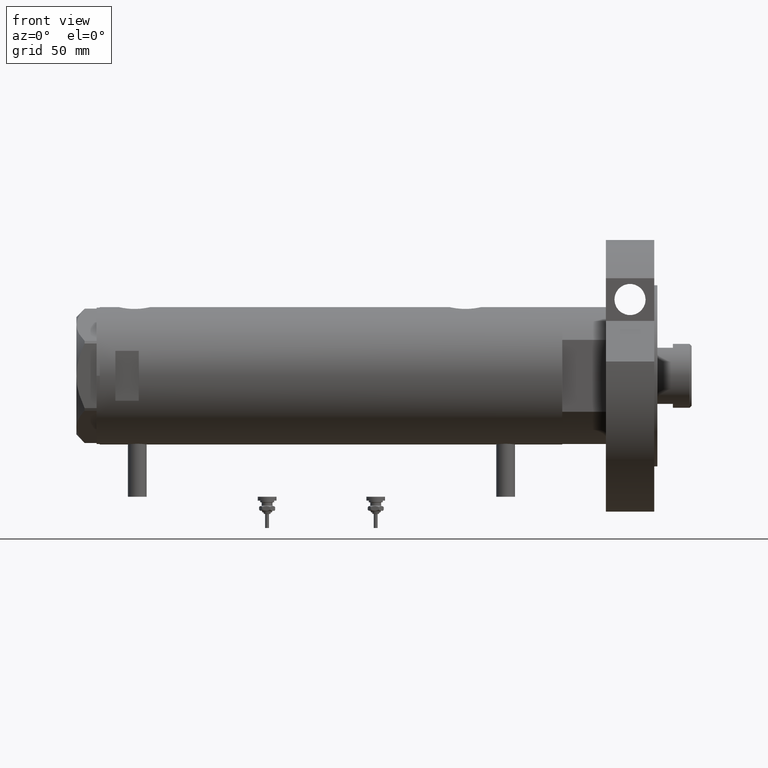
[diagram: clean part render]
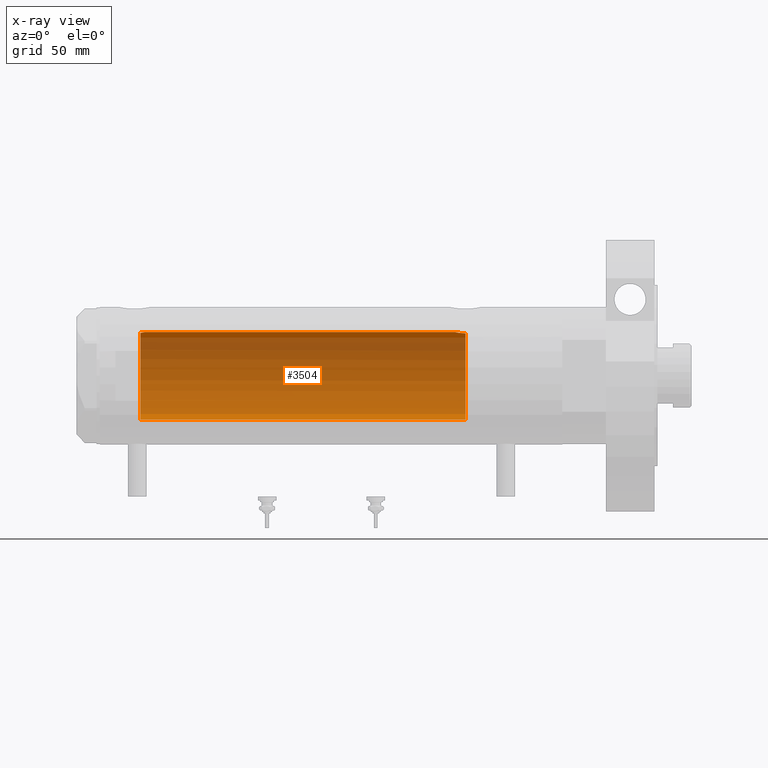
[diagram: x-ray — body ghosted, one internal face saturated and labeled with its STEP entity id]
A machine part, front view, then the same camera in x-ray: the body is ghosted and one INTERNAL B-rep face — a face not visible from any outside direction — is saturated and labeled: STEP entity #3504.
In plain terms, the highlighted cylindrical surface (partial cylindrical patch) has radius 28 mm, axis along (1, 0, -0).
Its self-contained STEP definition (entity closure, byte-faithful):
#91 = CIRCLE ( 'NONE', #5546, 28.00000000000000000 ) ;
#127 = CARTESIAN_POINT ( 'NONE',  ( 27.49602064413224056, 5.290780227724648732, 121.9788292468204673 ) ) ;
#196 = CARTESIAN_POINT ( 'NONE',  ( 27.98435453724556510, 1.072101232728050801, 119.3856609737169094 ) ) ;
#202 = CARTESIAN_POINT ( 'NONE',  ( 27.80267334785859390, 3.323944738624906581, -80.41709962017577595 ) ) ;
#605 = DIRECTION ( 'NONE',  ( -0.000000000000000000, -0.000000000000000000, -1.000000000000000000 ) ) ;
#626 = CARTESIAN_POINT ( 'NONE',  ( 27.84585502960274539, 2.940342086136629618, -80.20946914370765057 ) ) ;
#658 = CARTESIAN_POINT ( 'NONE',  ( 27.40633791352276205, 5.740289853568793177, -82.85469713442370221 ) ) ;
#701 = CARTESIAN_POINT ( 'NONE',  ( 27.22604017942137133, 6.537820648187913086, -85.32472952793342813 ) ) ;
#769 = CARTESIAN_POINT ( 'NONE',  ( 27.85549123290575935, 2.850830541327390666, 119.9637046868290611 ) ) ;
#772 = CARTESIAN_POINT ( 'NONE',  ( 27.65669575048418238, 4.382057994727794004, -81.17233761202035680 ) ) ;
#809 = AXIS2_PLACEMENT_3D ( 'NONE', #1359, #2950, #3562 ) ;
#934 = ORIENTED_EDGE ( 'NONE', *, *, #5885, .F. ) ;
#1148 = CARTESIAN_POINT ( 'NONE',  ( -28.00000000000000000, 0.000000000000000000, -86.20000000000000284 ) ) ;
#1249 = ORIENTED_EDGE ( 'NONE', *, *, #1820, .F. ) ;
#1306 = EDGE_CURVE ( 'NONE', #2098, #5479, #6637, .T. ) ;
#1359 = CARTESIAN_POINT ( 'NONE',  ( 0.000000000000000000, 0.000000000000000000, 148.1999999999999886 ) ) ;
#1820 = EDGE_CURVE ( 'NONE', #6581, #5479, #5862, .T. ) ;
#1902 = CARTESIAN_POINT ( 'NONE',  ( 27.46622653369042766, 5.441176343402222670, 122.2000000000000028 ) ) ;
#1906 = CARTESIAN_POINT ( 'NONE',  ( 27.55311958554909069, 4.984468698502469763, -81.79897075987406652 ) ) ;
#1974 = CARTESIAN_POINT ( 'NONE',  ( 28.00000000000000000, 0.000000000000000000, 119.3200000000000074 ) ) ;
#2008 = VERTEX_POINT ( 'NONE', #5565 ) ;
#2098 = VERTEX_POINT ( 'NONE', #1148 ) ;
#2315 = CARTESIAN_POINT ( 'NONE',  ( 28.00000000000000000, 3.429011037612589276E-15, 148.1999999999999886 ) ) ;
#2432 = FACE_OUTER_BOUND ( 'NONE', #4011, .T. ) ;
#2450 = CARTESIAN_POINT ( 'NONE',  ( 0.000000000000000000, 0.000000000000000000, -86.20000000000000284 ) ) ;
#2510 = CARTESIAN_POINT ( 'NONE',  ( 27.59012538417911031, 4.776664836238034617, 121.3667529856984544 ) ) ;
#2536 = CARTESIAN_POINT ( 'NONE',  ( 27.21605408577812568, 6.579240077698946365, -86.20000000000000284 ) ) ;
#2930 = CARTESIAN_POINT ( 'NONE',  ( 27.21605408577812568, 6.579240077698946365, -86.20000000000000284 ) ) ;
#2950 = DIRECTION ( 'NONE',  ( -0.000000000000000000, -0.000000000000000000, -1.000000000000000000 ) ) ;
#2965 = CARTESIAN_POINT ( 'NONE',  ( 27.21525044627864176, 6.582564457995945695, -85.98128103916469911 ) ) ;
#2996 = VECTOR ( 'NONE', #605, 1000.000000000000000 ) ;
#3075 = CARTESIAN_POINT ( 'NONE',  ( 27.28989504668421162, 6.268149480003695651, -84.05093353430703473 ) ) ;
#3105 = EDGE_CURVE ( 'NONE', #6858, #7479, #5725, .T. ) ;
#3146 = CARTESIAN_POINT ( 'NONE',  ( 28.00000000000000000, 0.5407212781083797770, 119.3200000000000216 ) ) ;
#3348 = ORIENTED_EDGE ( 'NONE', *, *, #3354, .T. ) ;
#3354 = EDGE_CURVE ( 'NONE', #6858, #2008, #91, .T. ) ;
#3504 = ADVANCED_FACE ( 'NONE', ( #2432 ), #4774, .F. ) ;
#3562 = DIRECTION ( 'NONE',  ( -1.000000000000000000, 0.000000000000000000, 0.000000000000000000 ) ) ;
#3576 = CARTESIAN_POINT ( 'NONE',  ( 27.26132124301008730, 6.389601967157238604, -84.46983701249828869 ) ) ;
#3665 = EDGE_CURVE ( 'NONE', #2008, #2098, #6851, .T. ) ;
#3719 = CARTESIAN_POINT ( 'NONE',  ( 27.62184089756353345, 4.590621453796798868, 121.1784729639471863 ) ) ;
#4011 = EDGE_LOOP ( 'NONE', ( #934, #4206, #3348, #4893, #4583, #1249 ) ) ;
#4073 = CARTESIAN_POINT ( 'NONE',  ( 27.86588799758911250, 2.744542339393451158, -80.11578757899563641 ) ) ;
#4152 = CARTESIAN_POINT ( 'NONE',  ( 28.00000000000000000, 0.4344375524774752306, -79.51999999999999602 ) ) ;
#4182 = CARTESIAN_POINT ( 'NONE',  ( 27.92131942247210219, 2.112374604004422007, 119.6625997420270977 ) ) ;
#4206 = ORIENTED_EDGE ( 'NONE', *, *, #3105, .F. ) ;
#4223 = CARTESIAN_POINT ( 'NONE',  ( 27.21712162367727927, 6.574850051620751756, -85.76016190408793705 ) ) ;
#4422 = CARTESIAN_POINT ( 'NONE',  ( 28.00000000000000000, 8.058211040172173087E-16, -79.52000000000001023 ) ) ;
#4541 = CARTESIAN_POINT ( 'NONE',  ( -28.00000000000000000, 0.000000000000000000, 148.1999999999999886 ) ) ;
#4554 = DIRECTION ( 'NONE',  ( 0.000000000000000000, 0.000000000000000000, 1.000000000000000000 ) ) ;
#4583 = ORIENTED_EDGE ( 'NONE', *, *, #1306, .T. ) ;
#4725 = CARTESIAN_POINT ( 'NONE',  ( 27.70785054350542609, 4.050475470458774652, -80.89631279652928697 ) ) ;
#4756 = CARTESIAN_POINT ( 'NONE',  ( 27.71586615897684069, 3.998795151939223746, 120.6476739562574778 ) ) ;
#4759 = CARTESIAN_POINT ( 'NONE',  ( 27.47751794615730248, 5.385218554237045652, -82.31285718566402920 ) ) ;
#4774 = CYLINDRICAL_SURFACE ( 'NONE', #809, 28.00000000000000000 ) ;
#4893 = ORIENTED_EDGE ( 'NONE', *, *, #3665, .T. ) ;
#5340 = CARTESIAN_POINT ( 'NONE',  ( 27.98989376185446432, 0.8673308354119230179, -79.56259295538819742 ) ) ;
#5401 = CARTESIAN_POINT ( 'NONE',  ( 27.93969014165222120, 1.855286977351521038, 119.5812411240566462 ) ) ;
#5405 = CARTESIAN_POINT ( 'NONE',  ( 27.23306259439847921, 6.508606919525676382, -85.10931986330979271 ) ) ;
#5439 = CARTESIAN_POINT ( 'NONE',  ( 28.00000000000000000, 0.000000000000000000, 119.3200000000000074 ) ) ;
#5479 = VERTEX_POINT ( 'NONE', #2536 ) ;
#5546 = AXIS2_PLACEMENT_3D ( 'NONE', #5792, #4554, #6453 ) ;
#5565 = CARTESIAN_POINT ( 'NONE',  ( -28.00000000000000000, 0.000000000000000000, 122.2000000000000028 ) ) ;
#5651 = AXIS2_PLACEMENT_3D ( 'NONE', #2450, #6548, #5998 ) ;
#5725 = B_SPLINE_CURVE_WITH_KNOTS ( 'NONE', 3,
 ( #1902, #127, #6568, #2510, #3719, #4756, #5989, #769, #5919, #4182, #5401, #196, #3146, #5439 ),
 .UNSPECIFIED., .F., .F.,
 ( 4, 2, 2, 2, 2, 2, 4 ),
 ( 0.03488855882532452407, 0.03568791961119571754, 0.03648728039706691101, 0.03808600196880932570, 0.03888536275468051917, 0.03968472354055171958, 0.04128344511229410652 ),
 .UNSPECIFIED. ) ;
#5790 = VECTOR ( 'NONE', #7550, 1000.000000000000000 ) ;
#5792 = CARTESIAN_POINT ( 'NONE',  ( 0.000000000000000000, 0.000000000000000000, 122.2000000000000028 ) ) ;
#5851 = CARTESIAN_POINT ( 'NONE',  ( 27.94984428957576483, 1.729919005741095805, -79.73624844305086867 ) ) ;
#5862 = B_SPLINE_CURVE_WITH_KNOTS ( 'NONE', 3,
 ( #6540, #4152, #5340, #5851, #6427, #4073, #626, #202, #7070, #4725, #772, #6501, #1906, #5884, #4759, #658, #7106, #3075, #3576, #5405, #701, #4223, #2965, #2930 ),
 .UNSPECIFIED., .F., .F.,
 ( 4, 2, 2, 2, 2, 2, 2, 2, 2, 2, 2, 4 ),
 ( 0.02064447638625020037, 0.02194711032043803953, 0.02324974425462587868, 0.02390106122171980693, 0.02455237818881373518, 0.02585501212300159168, 0.02650632909009551647, 0.02715764605718944472, 0.02846027999137729775, 0.02976291392556515425, 0.03041423089265907903, 0.03106554785975300728 ),
 .UNSPECIFIED. ) ;
#5884 = CARTESIAN_POINT ( 'NONE',  ( 27.50226589723265747, 5.257822516958271741, -82.13779315141979964 ) ) ;
#5885 = EDGE_CURVE ( 'NONE', #7479, #6581, #7004, .T. ) ;
#5919 = CARTESIAN_POINT ( 'NONE',  ( 27.87926027245440963, 2.609415915507857342, 119.8536592036424508 ) ) ;
#5989 = CARTESIAN_POINT ( 'NONE',  ( 27.77752716845532532, 3.554080867558345957, 120.3370280902186238 ) ) ;
#5998 = DIRECTION ( 'NONE',  ( -1.000000000000000000, 0.000000000000000000, 0.000000000000000000 ) ) ;
#6427 = CARTESIAN_POINT ( 'NONE',  ( 27.92057377942992957, 2.145335874642060769, -79.86449057456586331 ) ) ;
#6453 = DIRECTION ( 'NONE',  ( 1.000000000000000000, 0.000000000000000000, 0.000000000000000000 ) ) ;
#6501 = CARTESIAN_POINT ( 'NONE',  ( 27.57921322802619457, 4.838471943606464265, -81.63541026849053139 ) ) ;
#6540 = CARTESIAN_POINT ( 'NONE',  ( 28.00000000000000000, 8.058211040172173087E-16, -79.52000000000001023 ) ) ;
#6548 = DIRECTION ( 'NONE',  ( 0.000000000000000000, 0.000000000000000000, -1.000000000000000000 ) ) ;
#6568 = CARTESIAN_POINT ( 'NONE',  ( 27.52730847012277948, 5.126288527110434146, 121.7662339946191281 ) ) ;
#6581 = VERTEX_POINT ( 'NONE', #4422 ) ;
#6637 = CIRCLE ( 'NONE', #5651, 28.00000000000000000 ) ;
#6851 = LINE ( 'NONE', #4541, #5790 ) ;
#6858 = VERTEX_POINT ( 'NONE', #7500 ) ;
#7004 = LINE ( 'NONE', #2315, #2996 ) ;
#7070 = CARTESIAN_POINT ( 'NONE',  ( 27.77951318121830226, 3.511620812961476545, -80.53115835401439426 ) ) ;
#7106 = CARTESIAN_POINT ( 'NONE',  ( 27.36295003163000672, 5.941130795499228512, -83.23794896005176724 ) ) ;
#7479 = VERTEX_POINT ( 'NONE', #1974 ) ;
#7500 = CARTESIAN_POINT ( 'NONE',  ( 27.46622653369042766, 5.441176343402222670, 122.2000000000000028 ) ) ;
#7550 = DIRECTION ( 'NONE',  ( -0.000000000000000000, -0.000000000000000000, -1.000000000000000000 ) ) ;